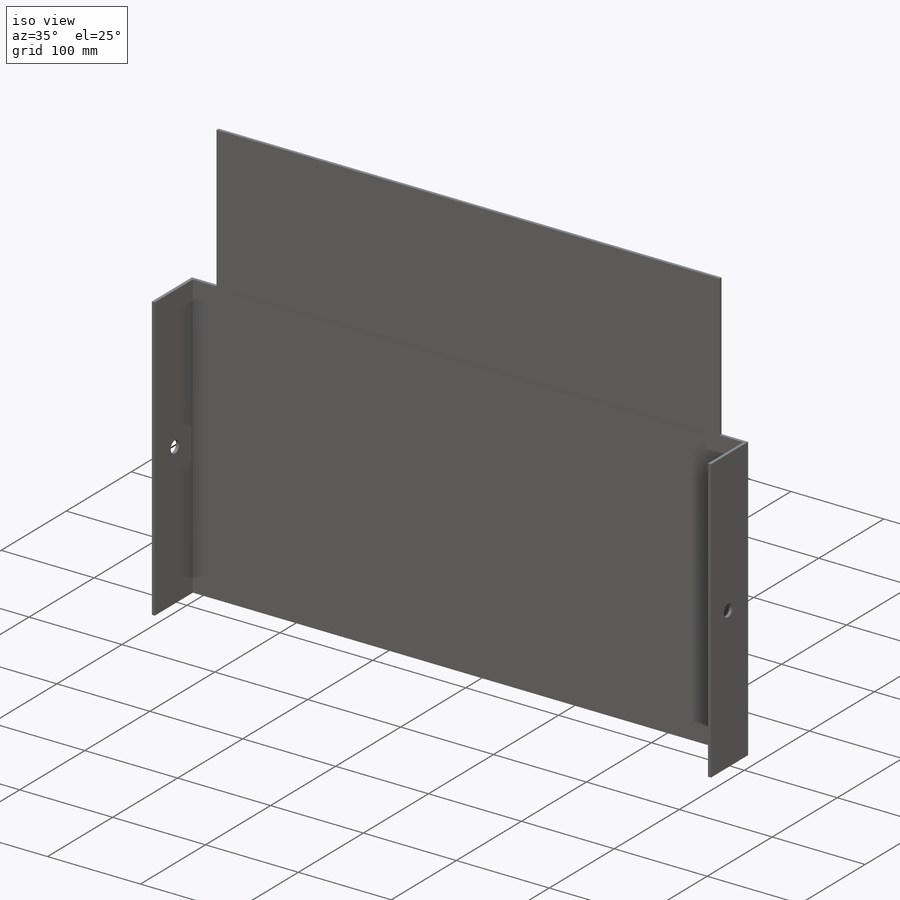
[diagram: iso view]
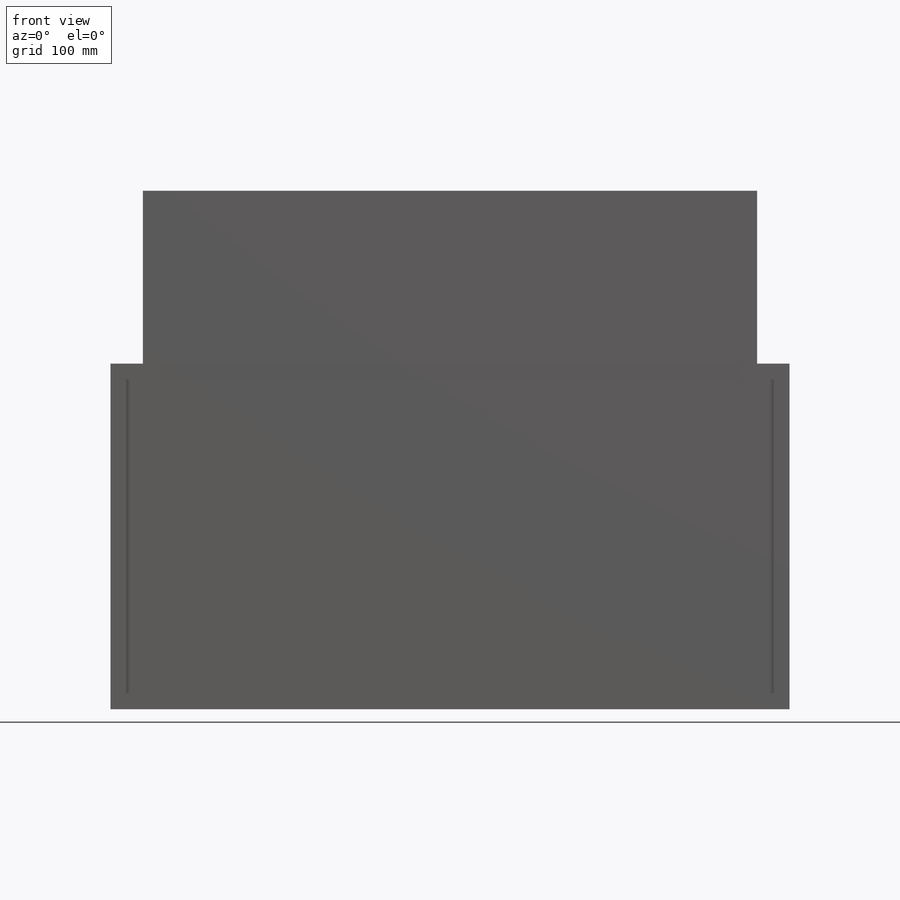
[diagram: front view]
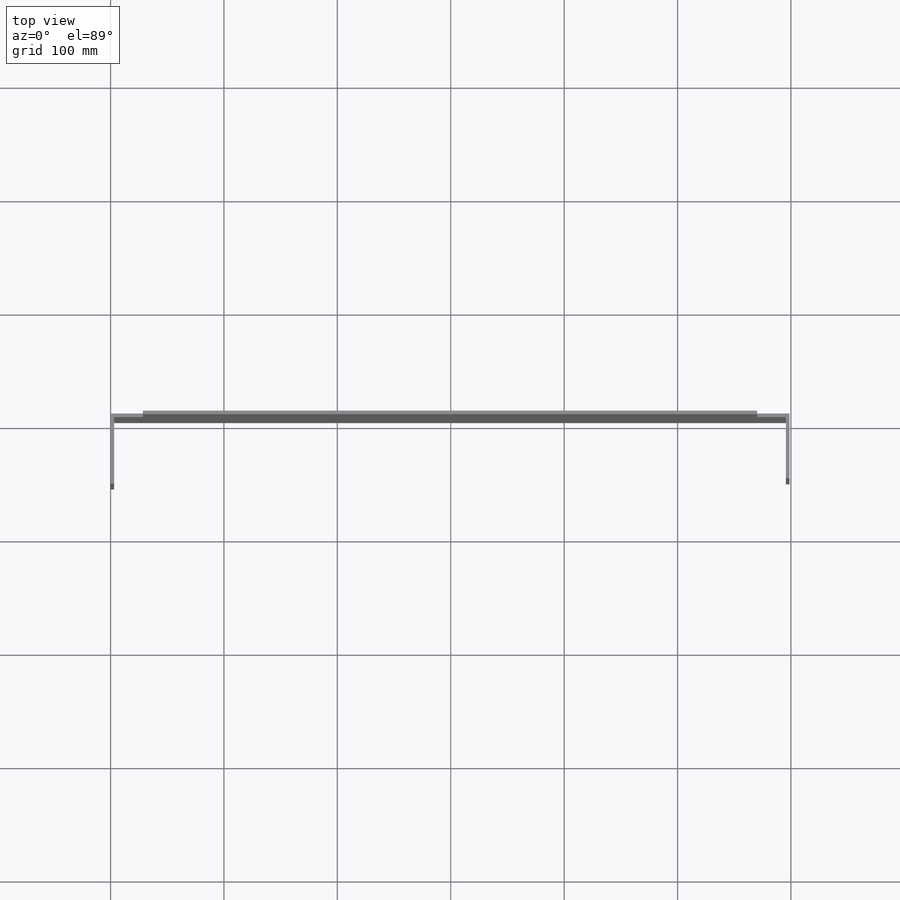
[diagram: top view]
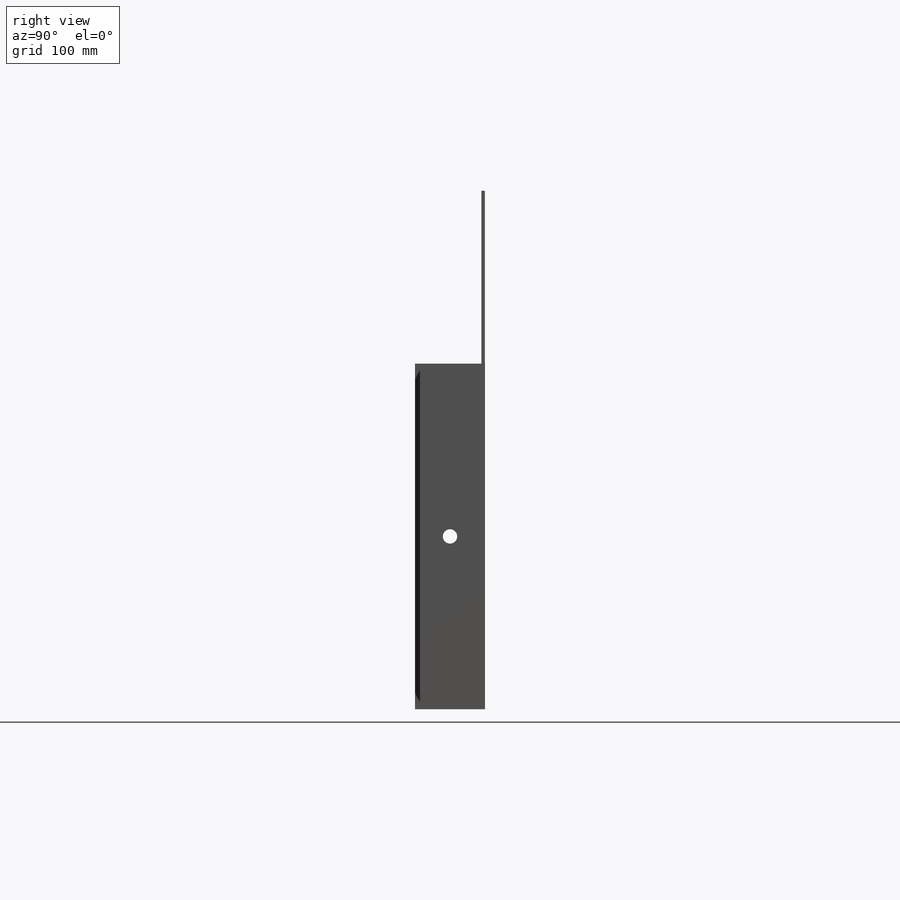
[diagram: right view]
SOLIDWORKS PART (.sldprt)
format: sldprt  version: not decoded by parser v0  size: 166,400 bytes
history: native  units: mm
features: sketch x5, extrude x2, material x1, cut_extrude x1 (+11 scaffold rows collapsed)
feature tree (20):
  scaffold x11  (default folders/planes/origin — collapsed)
  material  "Material <not specified>"
  sketch  "Sketch1"  dims[c1.D1=3.175mm c1.D2=3.175mm c1.D3=3.175mm c1.D4=592.328mm c1.D5=53.975mm c1.D6=53.975mm c2.D1=3.175mm c2.D3=~72.077464mm c3.D3=~178.26979deg c4.D3=~69.844677mm c5.D3=~179.888786deg c6.D3=~50.949133mm c6.D1=3.175mm]
  extrude  "Boss-Extrude1"  Depth=304.8mm
  sketch  "Sketch2"
  sketch  "Sketch3"
  sketch  "Sketch4"  dims[D1=~15.202866mm]
  cut_extrude  "Cut-Extrude1"  [1 undecoded]
  sketch  "Sketch5"  dims[D1=25.4mm D2=25.4mm]
  extrude  "Boss-Extrude2"  Depth=152.4mm
decode coverage: 5 of 8 modeling features carry decoded parameters
note: ~ marks probable driven/reference dimensions
note: 1 parameter value undecoded
note: suppression state not decoded; provenance and decode notes live in map.json
